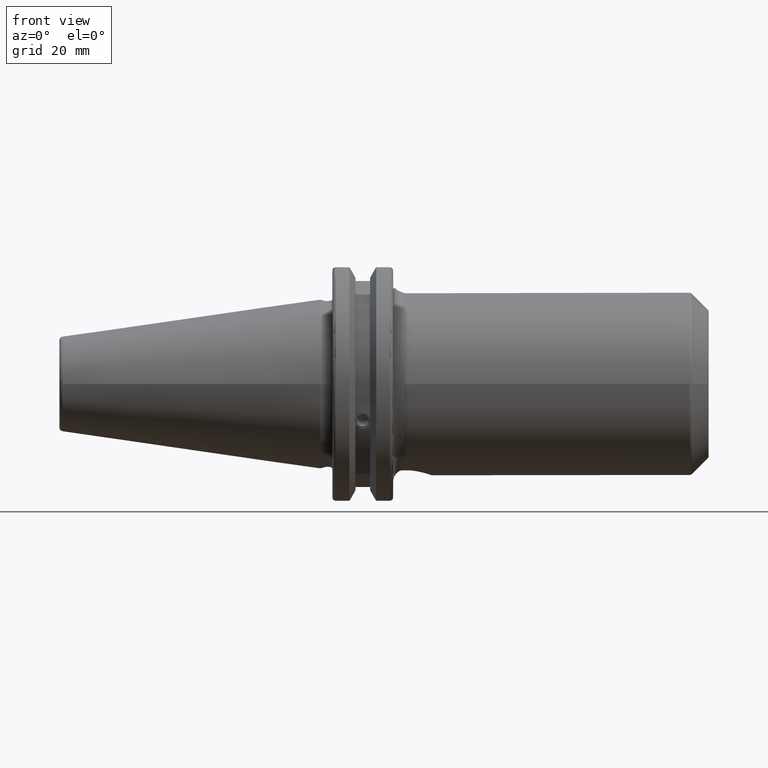
[diagram: clean part render]
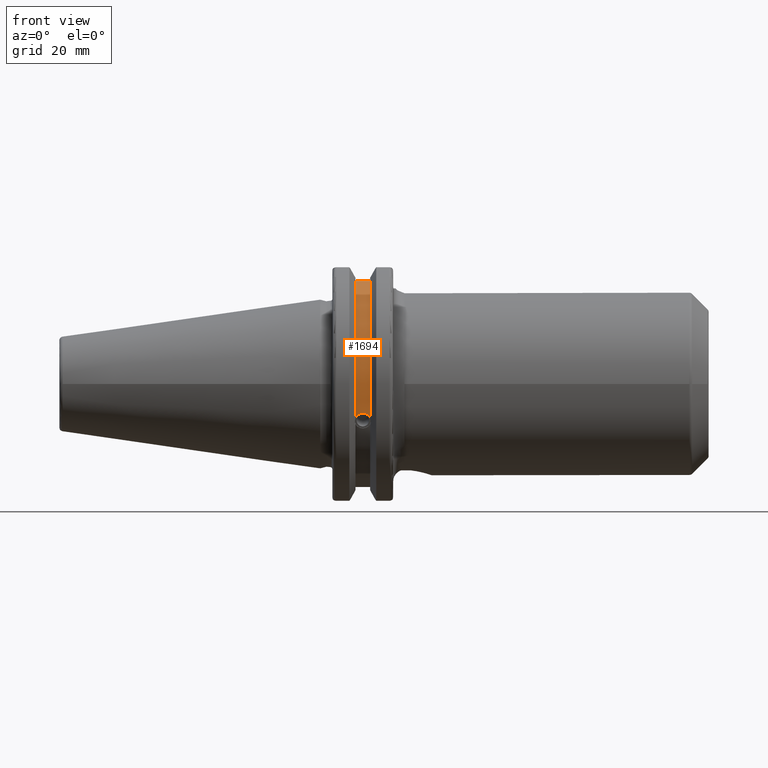
[diagram: same view with one face highlighted and labeled with its STEP entity id]
A machine part, front view. The second image highlights one B-rep face of the part: STEP entity #1694.
In plain terms, the highlighted cylindrical surface (partial cylindrical patch) has radius 28.15 mm, axis along (1, 0, 0).
Its self-contained STEP definition (entity closure, byte-faithful):
#146=CYLINDRICAL_SURFACE('',#1902,28.15);
#229=FACE_OUTER_BOUND('',#338,.T.);
#338=EDGE_LOOP('',(#1548,#1549,#1550,#1551));
#425=CIRCLE('',#1903,28.15);
#426=CIRCLE('',#1904,28.15);
#493=LINE('',#3274,#582);
#582=VECTOR('',#2253,10.);
#636=B_SPLINE_CURVE_WITH_KNOTS('',3,(#2872,#2873,#2874,#2875,#2876,#2877,
#2878,#2879,#2880,#2881,#2882,#2883,#2884,#2885),.UNSPECIFIED.,.F.,.F.,
(4,2,2,2,2,2,4),(0.401639126382404,0.474814416953736,0.553950208498303,
0.63308600004287,0.712221791587437,0.791357583132004,0.864532873703336),
 .UNSPECIFIED.);
#726=VERTEX_POINT('',#2869);
#727=VERTEX_POINT('',#2871);
#806=VERTEX_POINT('',#3271);
#807=VERTEX_POINT('',#3273);
#920=EDGE_CURVE('',#727,#726,#636,.T.);
#1030=EDGE_CURVE('',#807,#806,#493,.T.);
#1079=EDGE_CURVE('',#807,#726,#425,.T.);
#1080=EDGE_CURVE('',#806,#727,#426,.T.);
#1548=ORIENTED_EDGE('',*,*,#920,.T.);
#1549=ORIENTED_EDGE('',*,*,#1079,.F.);
#1550=ORIENTED_EDGE('',*,*,#1030,.T.);
#1551=ORIENTED_EDGE('',*,*,#1080,.T.);
#1694=ADVANCED_FACE('',(#229),#146,.T.);
#1902=AXIS2_PLACEMENT_3D('',#3418,#2355,#2356);
#1903=AXIS2_PLACEMENT_3D('',#3419,#2357,#2358);
#1904=AXIS2_PLACEMENT_3D('',#3420,#2359,#2360);
#2253=DIRECTION('',(-1.,0.,0.));
#2355=DIRECTION('center_axis',(1.,0.,0.));
#2356=DIRECTION('ref_axis',(0.,-0.887654187951484,0.46051063246378));
#2357=DIRECTION('center_axis',(1.,0.,0.));
#2358=DIRECTION('ref_axis',(0.,0.,-1.));
#2359=DIRECTION('center_axis',(1.,0.,0.));
#2360=DIRECTION('ref_axis',(0.,0.,-1.));
#2869=CARTESIAN_POINT('',(13.0491,-26.734714844398,-8.81348524641211));
#2871=CARTESIAN_POINT('',(9.2191,-26.734714844398,-8.81348524641212));
#2872=CARTESIAN_POINT('Ctrl Pts',(9.2191,-26.734714844398,-8.81348524641212));
#2873=CARTESIAN_POINT('Ctrl Pts',(9.32533057097183,-26.8086519721597,-8.58920529678291));
#2874=CARTESIAN_POINT('Ctrl Pts',(9.47682013770509,-26.8729987454904,-8.38416529997369));
#2875=CARTESIAN_POINT('Ctrl Pts',(9.83557062657411,-26.9778908791383,-8.04056861831091));
#2876=CARTESIAN_POINT('Ctrl Pts',(10.0716450112988,-27.0233016799732,-7.88512567185902));
#2877=CARTESIAN_POINT('Ctrl Pts',(10.5890125426388,-27.0826966800569,-7.6786444840004));
#2878=CARTESIAN_POINT('Ctrl Pts',(10.8703140281848,-27.0968804077294,-7.62768458768512));
#2879=CARTESIAN_POINT('Ctrl Pts',(11.3978859718152,-27.0968804077294,-7.62768458768512));
#2880=CARTESIAN_POINT('Ctrl Pts',(11.6791874573612,-27.0826966800569,-7.6786444840004));
#2881=CARTESIAN_POINT('Ctrl Pts',(12.1965549887012,-27.0233016799732,-7.88512567185902));
#2882=CARTESIAN_POINT('Ctrl Pts',(12.4326293734259,-26.9778908791383,-8.04056861831091));
#2883=CARTESIAN_POINT('Ctrl Pts',(12.7913798622949,-26.8729987454904,-8.38416529997369));
#2884=CARTESIAN_POINT('Ctrl Pts',(12.9428694290282,-26.8086519721597,-8.58920529678291));
#2885=CARTESIAN_POINT('Ctrl Pts',(13.0491,-26.734714844398,-8.81348524641211));
#3271=CARTESIAN_POINT('',(9.2191,-8.19,26.932255754021));
#3273=CARTESIAN_POINT('',(13.0491,-8.19,26.932255754021));
#3274=CARTESIAN_POINT('',(11.1341,-8.19,26.932255754021));
#3418=CARTESIAN_POINT('Origin',(11.1341,0.,0.));
#3419=CARTESIAN_POINT('Origin',(13.0491,0.,0.));
#3420=CARTESIAN_POINT('Origin',(9.2191,0.,0.));